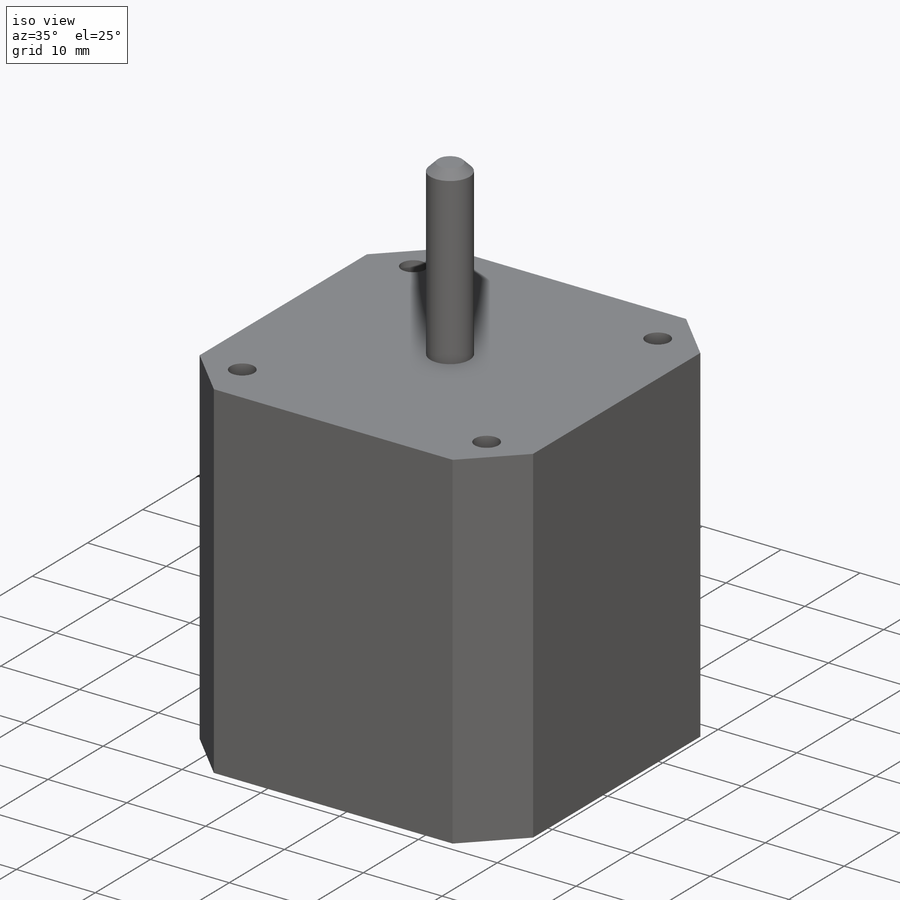
[diagram: iso view]
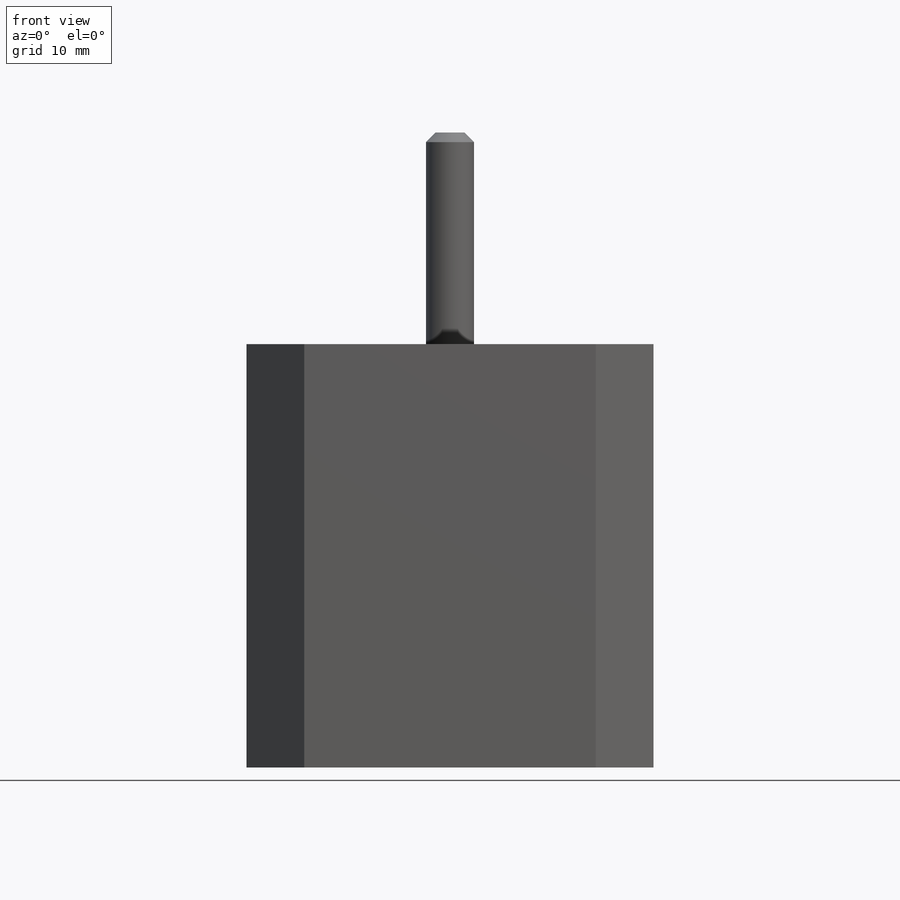
[diagram: front view]
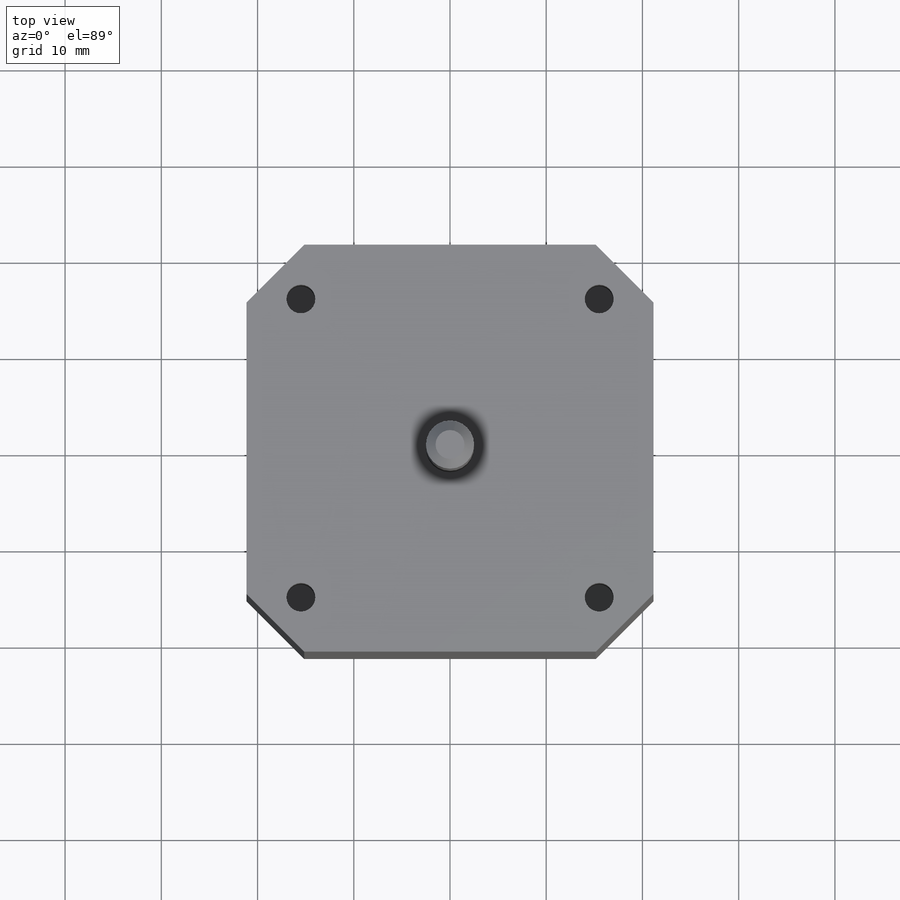
[diagram: top view]
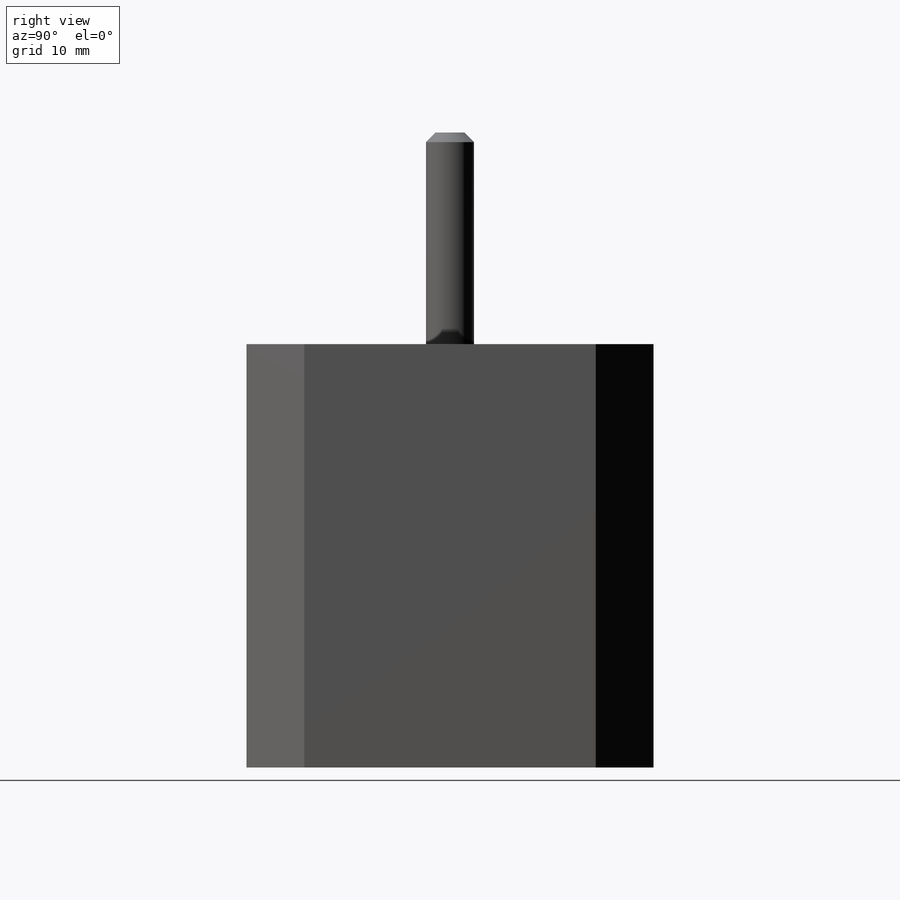
[diagram: right view]
SOLIDWORKS PART (.sldprt)
format: sldprt  version: not decoded by parser v0  size: 163,840 bytes
history: native  units: mm
features: sketch x3, extrude x2, chamfer x2, material x1, cut_extrude x1 (+13 scaffold rows collapsed)
feature tree (22):
  scaffold x13  (default folders/planes/origin — collapsed)
  material  "Material <not specified>"
  sketch  "Sketch1"  dims[D3=5.0mm D1=42.3mm D2=42.3mm]
  extrude  "Boss-Extrude1"  Depth=44mm
  extrude  "Boss-Extrude2"  [1 undecoded]
  sketch  "Sketch1<3>"  dims[D1=66.0mm]
  chamfer  "Chamfer1"  Distance=6mm Angle=45deg
  chamfer  "Chamfer2"  Distance=1mm Angle=45deg
  sketch  "Sketch2"  dims[D1=3.0mm D2=31.0mm D3=31.0mm D4=5.65mm D5=5.65mm]
  cut_extrude  "Cut-Extrude1"  Depth=10mm
decode coverage: 7 of 8 modeling features carry decoded parameters
note: 1 parameter value undecoded
note: suppression state not decoded; provenance and decode notes live in map.json
